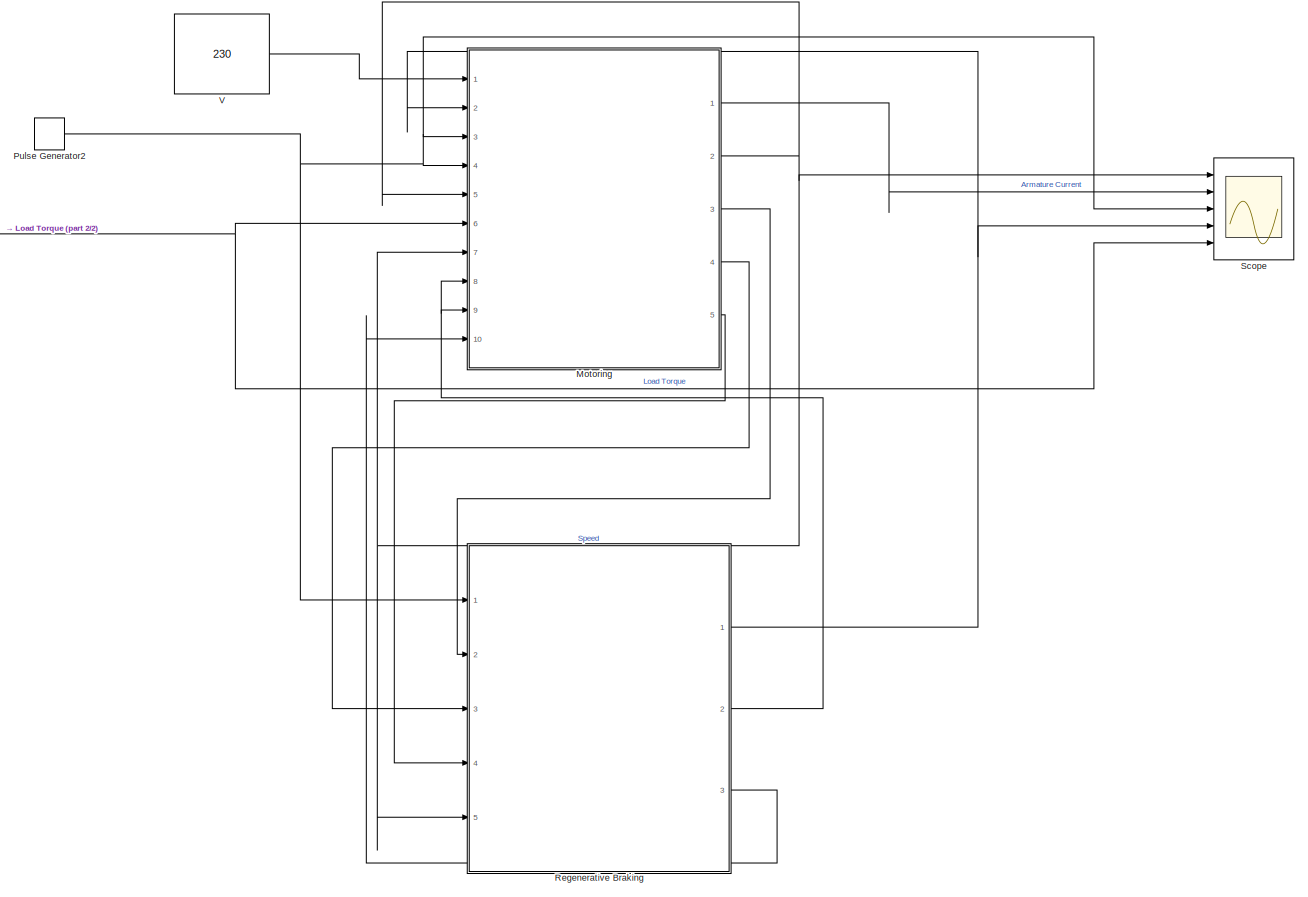
[diagram: root canvas - part 1/2, most of the canvas]
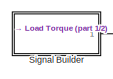
[diagram: root canvas - part 2/2, top left region]
MODEL slx_06cf62cde846
KIND model
CONFIG AbsTol = auto
CONFIG EnableMultiTasking = off
CONFIG FixedStep = auto
CONFIG MaxStep = auto
CONFIG MinStep = auto
CONFIG RelTol = 1e-3
CONFIG SampleTimeConstraint = Unconstrained
CONFIG SolverName = ode45
CONFIG StartTime = 0.0
CONFIG StopTime = 10.0
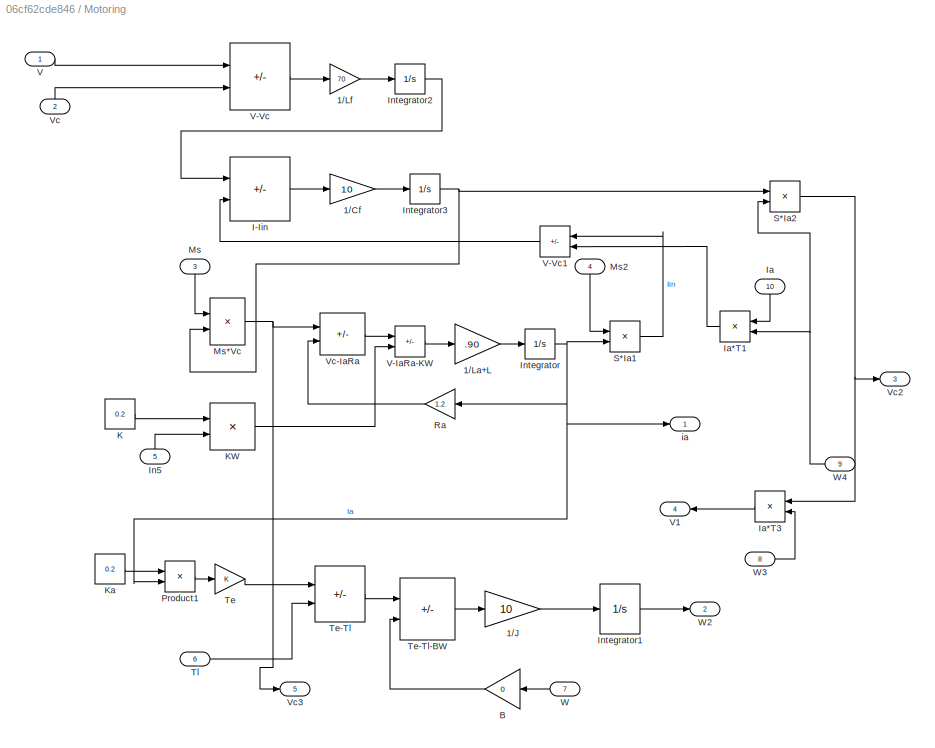
BLOCK [SubSystem] Motoring
  Ports = [10, 5]
  RequestExecContextInheritance = off
BLOCK [Gain] Motoring/1//Cf
  Gain = 10
BLOCK [Gain] Motoring/1//J
  Gain = 10
BLOCK [Gain] Motoring/1//La+L
  Gain = .90
BLOCK [Gain] Motoring/1//Lf
  Gain = 70
BLOCK [Gain] Motoring/B
  Gain = 0
BLOCK [Sum] Motoring/I-Iin
  IconShape = rectangular
  Inputs = +-
  Ports = [2, 1]
BLOCK [Inport] Motoring/Ia
  NameLocation = left
  Port = 10
BLOCK [Product] Motoring/Ia*T1
  NameLocation = top
  Ports = [2, 1]
BLOCK [Product] Motoring/Ia*T3
  NameLocation = top
  Ports = [2, 1]
BLOCK [Inport] Motoring/In5
  NameLocation = right
  Port = 5
BLOCK [Integrator] Motoring/Integrator
  Ports = [1, 1]
BLOCK [Integrator] Motoring/Integrator1
  Ports = [1, 1]
BLOCK [Integrator] Motoring/Integrator2
  Ports = [1, 1]
BLOCK [Integrator] Motoring/Integrator3
  Ports = [1, 1]
BLOCK [Constant] Motoring/K
  Value = 0.2
BLOCK [Product] Motoring/KW
  Ports = [2, 1]
BLOCK [Constant] Motoring/Ka
  Value = 0.2
BLOCK [Inport] Motoring/Ms
  NameLocation = right
  Port = 3
BLOCK [Product] Motoring/Ms*Vc
  Ports = [2, 1]
BLOCK [Inport] Motoring/Ms2
  NameLocation = right
  Port = 4
BLOCK [Product] Motoring/Product1
  Ports = [2, 1]
BLOCK [Gain] Motoring/Ra
  Gain = 1.2
  NameLocation = top
BLOCK [Product] Motoring/S*Ia1
  Ports = [2, 1]
BLOCK [Product] Motoring/S*Ia2
  Ports = [2, 1]
BLOCK [Gain] Motoring/Te
BLOCK [Sum] Motoring/Te-Tl
  IconShape = rectangular
  Inputs = +-
  Ports = [2, 1]
BLOCK [Sum] Motoring/Te-Tl-BW
  IconShape = rectangular
  Inputs = +-
  Ports = [2, 1]
BLOCK [Inport] Motoring/Tl
  Port = 6
BLOCK [Inport] Motoring/V
BLOCK [Sum] Motoring/V-IaRa-KW
  IconShape = rectangular
  Inputs = +-
  Ports = [2, 1]
BLOCK [Sum] Motoring/V-Vc
  IconShape = rectangular
  Inputs = +-
  Ports = [2, 1]
BLOCK [Sum] Motoring/V-Vc1
  IconShape = rectangular
  Inputs = +-
  NameLocation = top
  Ports = [2, 1]
BLOCK [Outport] Motoring/V1
  NameLocation = top
  Port = 4
BLOCK [Inport] Motoring/Vc
  NameLocation = right
  Port = 2
BLOCK [Sum] Motoring/Vc-IaRa
  IconShape = rectangular
  Inputs = +-
  Ports = [2, 1]
BLOCK [Outport] Motoring/Vc2
  Port = 3
BLOCK [Outport] Motoring/Vc3
  Port = 5
BLOCK [Inport] Motoring/W
  Port = 7
BLOCK [Outport] Motoring/W2
  Port = 2
BLOCK [Inport] Motoring/W3
  NameLocation = top
  Port = 8
BLOCK [Inport] Motoring/W4
  NameLocation = top
  Port = 9
BLOCK [Outport] Motoring/ia
BLOCK [DiscretePulseGenerator] Pulse Generator2
  Period = 90
  Ports = [0, 1]
  PulseType = Time based
  PulseWidth = 99
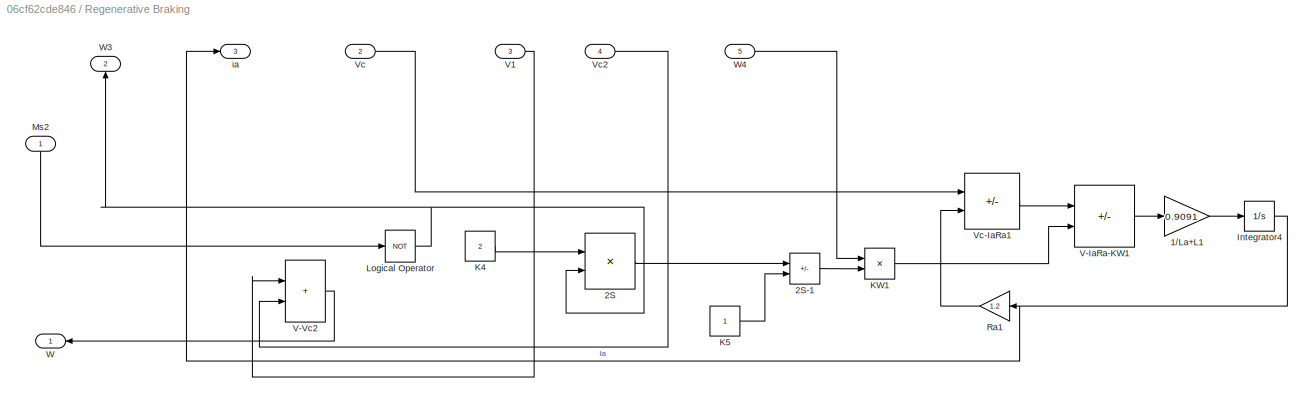
BLOCK [SubSystem] Regenerative Braking
  Ports = [5, 3]
  RequestExecContextInheritance = off
BLOCK [Gain] Regenerative Braking/1//La+L1
  Gain = 0.9091
BLOCK [Product] Regenerative Braking/2S
  Ports = [2, 1]
BLOCK [Sum] Regenerative Braking/2S-1
  IconShape = rectangular
  Inputs = +-
  Ports = [2, 1]
BLOCK [Integrator] Regenerative Braking/Integrator4
  Ports = [1, 1]
BLOCK [Constant] Regenerative Braking/K4
  Value = 2
BLOCK [Constant] Regenerative Braking/K5
BLOCK [Product] Regenerative Braking/KW1
  Ports = [2, 1]
BLOCK [Logic] Regenerative Braking/Logical Operator
  AllPortsSameDT = off
  Operator = NOT
  OutDataTypeStr = boolean
  Ports = [1, 1]
BLOCK [Inport] Regenerative Braking/Ms2
  NameLocation = right
BLOCK [Gain] Regenerative Braking/Ra1
  Gain = 1.2
  NameLocation = top
BLOCK [Sum] Regenerative Braking/V-IaRa-KW1
  IconShape = rectangular
  Inputs = +-
  Ports = [2, 1]
BLOCK [Sum] Regenerative Braking/V-Vc2
  IconShape = rectangular
  Ports = [2, 1]
BLOCK [Inport] Regenerative Braking/V1
  Port = 3
BLOCK [Inport] Regenerative Braking/Vc
  Port = 2
BLOCK [Sum] Regenerative Braking/Vc-IaRa1
  IconShape = rectangular
  Inputs = +-
  Ports = [2, 1]
BLOCK [Inport] Regenerative Braking/Vc2
  Port = 4
BLOCK [Outport] Regenerative Braking/W
  NameLocation = top
BLOCK [Outport] Regenerative Braking/W3
  NameLocation = right
  Port = 2
BLOCK [Inport] Regenerative Braking/W4
  Port = 5
BLOCK [Outport] Regenerative Braking/ia
  Port = 3
BLOCK [Scope] Scope
  Floating = off
  NumInputPorts = 5
  Ports = [5]
  ScopeSpecificationString = Simulink.scopes.TimeScopeBlockCfg('CurrentConfiguration', extmgr.ConfigurationSet(extmgr.Configuration('Core','General UI',true),extmgr.Configuration('Core','Source UI',true),extmgr.Configuration('Sources','WiredSimulink',true),extmgr.Configuration('Visuals','Time Domain',true,'SerializedDisplays',{struct('MinYLimReal','-142.89583','MaxYLimReal','1255.4502','YLabelReal','','MinYLimMag',' 0.00000',...<+4110ch>
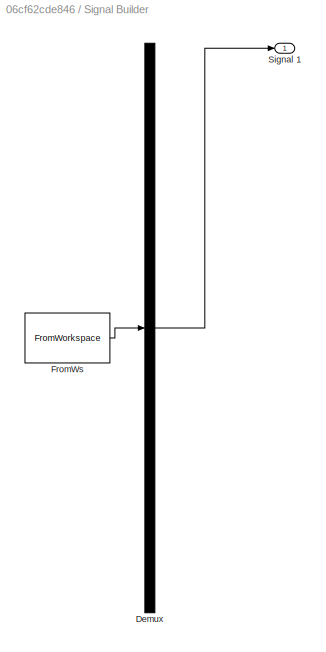
BLOCK [SubSystem] Signal Builder
  ClipboardFcn = sigbuilder_block('clipboard');
  CloseFcn = sigbuilder_block('close');
  ContinueFcn = sigbuilder_block('continue');
  CopyFcn = sigbuilder_block('copy');
  DeleteFcn = sigbuilder_block('delete');
  LoadFcn = sigbuilder_block('load');
  MaskHideContents = on
  ModelCloseFcn = sigbuilder_block('modelClose');
  NameChangeFcn = sigbuilder_block('namechange');
  OpenFcn = sigbuilder_block('open',[384.75 86.25 550.5 359.25 ]);
  PauseFcn = sigbuilder_block('pause');
  Ports = [0, 1]
  PreSaveFcn = sigbuilder_block('preSave');
  RequestExecContextInheritance = off
  StartFcn = sigbuilder_block('start');
  StopFcn = sigbuilder_block('stop');
  Tag = STV Subsys
BLOCK [Demux] Signal Builder/Demux
  DisplayOption = none
  Outputs = 1
  Ports = [1, 1]
  Tag = STV Demux
BLOCK [FromWorkspace] Signal Builder/FromWs
  Tag = STV FromWs
  VariableName = tuvar
BLOCK [Outport] Signal Builder/Signal 1
  Tag = STV Outport
BLOCK [Constant] V
  Value = 230
LINE Motoring/1//Cf:1 -> Motoring/Integrator3:1
LINE Motoring/1//J:1 -> Motoring/Integrator1:1
LINE Motoring/1//La+L:1 -> Motoring/Integrator:1
LINE Motoring/1//Lf:1 -> Motoring/Integrator2:1
LINE Motoring/B:1 -> Motoring/Te-Tl-BW:2
LINE Motoring/I-Iin:1 -> Motoring/1//Cf:1
LINE Motoring/Ia*T1:1 -> Motoring/V-Vc1:2
LINE Motoring/Ia*T3:1 -> Motoring/V1:1
LINE Motoring/Ia:1 -> Motoring/Ia*T1:1
LINE Motoring/In5:1 -> Motoring/KW:2
LINE Motoring/Integrator1:1 -> Motoring/W2:1
LINE Motoring/Integrator2:1 -> Motoring/I-Iin:1
NET Motoring/Integrator3:1 -> Motoring/Ms*Vc:2, Motoring/S*Ia2:1
NET Motoring/Integrator:1 -> Motoring/Product1:2, Motoring/Ra:1, Motoring/S*Ia1:2, Motoring/ia:1
LINE Motoring/K:1 -> Motoring/KW:1
LINE Motoring/KW:1 -> Motoring/V-IaRa-KW:2
LINE Motoring/Ka:1 -> Motoring/Product1:1
NET Motoring/Ms*Vc:1 -> Motoring/Vc-IaRa:1, Motoring/Vc3:1
LINE Motoring/Ms2:1 -> Motoring/S*Ia1:1
LINE Motoring/Ms:1 -> Motoring/Ms*Vc:1
LINE Motoring/Product1:1 -> Motoring/Te:1
LINE Motoring/Ra:1 -> Motoring/Vc-IaRa:2
LINE Motoring/S*Ia1:1 -> Motoring/V-Vc1:1
NET Motoring/S*Ia2:1 -> Motoring/Ia*T3:1, Motoring/Vc2:1
LINE Motoring/Te-Tl-BW:1 -> Motoring/1//J:1
LINE Motoring/Te-Tl:1 -> Motoring/Te-Tl-BW:1
LINE Motoring/Te:1 -> Motoring/Te-Tl:1
LINE Motoring/Tl:1 -> Motoring/Te-Tl:2
LINE Motoring/V-IaRa-KW:1 -> Motoring/1//La+L:1
LINE Motoring/V-Vc1:1 -> Motoring/I-Iin:2
LINE Motoring/V-Vc:1 -> Motoring/1//Lf:1
LINE Motoring/V:1 -> Motoring/V-Vc:1
LINE Motoring/Vc-IaRa:1 -> Motoring/V-IaRa-KW:1
LINE Motoring/Vc:1 -> Motoring/V-Vc:2
LINE Motoring/W3:1 -> Motoring/Ia*T3:2
NET Motoring/W4:1 -> Motoring/Ia*T1:2, Motoring/S*Ia2:2
LINE Motoring/W:1 -> Motoring/B:1
LINE Motoring:1 -> Scope:2
NET Motoring:2 -> Motoring:5, Motoring:7, Regenerative Braking:5, Scope:1
LINE Motoring:3 -> Regenerative Braking:2
LINE Motoring:4 -> Regenerative Braking:3
LINE Motoring:5 -> Regenerative Braking:4
NET Pulse Generator2:1 -> Motoring:3, Motoring:4, Regenerative Braking:1, Scope:3
LINE Regenerative Braking/1//La+L1:1 -> Regenerative Braking/Integrator4:1
LINE Regenerative Braking/2S-1:1 -> Regenerative Braking/KW1:2
LINE Regenerative Braking/2S:1 -> Regenerative Braking/2S-1:1
NET Regenerative Braking/Integrator4:1 -> Regenerative Braking/Ra1:1, Regenerative Braking/ia:1
LINE Regenerative Braking/K4:1 -> Regenerative Braking/2S:1
LINE Regenerative Braking/K5:1 -> Regenerative Braking/2S-1:2
LINE Regenerative Braking/KW1:1 -> Regenerative Braking/V-IaRa-KW1:2
NET Regenerative Braking/Logical Operator:1 -> Regenerative Braking/2S:2, Regenerative Braking/W3:1
LINE Regenerative Braking/Ms2:1 -> Regenerative Braking/Logical Operator:1
LINE Regenerative Braking/Ra1:1 -> Regenerative Braking/Vc-IaRa1:2
LINE Regenerative Braking/V-IaRa-KW1:1 -> Regenerative Braking/1//La+L1:1
LINE Regenerative Braking/V-Vc2:1 -> Regenerative Braking/W:1
LINE Regenerative Braking/V1:1 -> Regenerative Braking/V-Vc2:1
LINE Regenerative Braking/Vc-IaRa1:1 -> Regenerative Braking/V-IaRa-KW1:1
LINE Regenerative Braking/Vc2:1 -> Regenerative Braking/V-Vc2:2
LINE Regenerative Braking/Vc:1 -> Regenerative Braking/Vc-IaRa1:1
LINE Regenerative Braking/W4:1 -> Regenerative Braking/KW1:1
NET Regenerative Braking:1 -> Motoring:2, Scope:4
NET Regenerative Braking:2 -> Motoring:8, Motoring:9
LINE Regenerative Braking:3 -> Motoring:10
NET Signal Builder:1 -> Motoring:6, Scope:5
LINE V:1 -> Motoring:1
note: NET lines group one-source signal fan-out (src -> all destinations, sorted); 1:1 wires keep LINE
